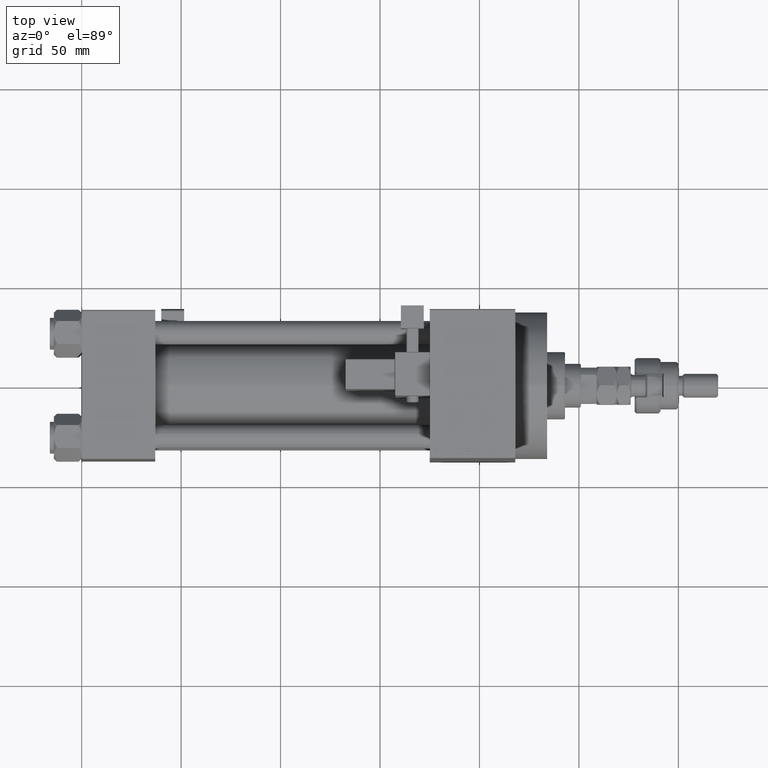
[diagram: clean part render]
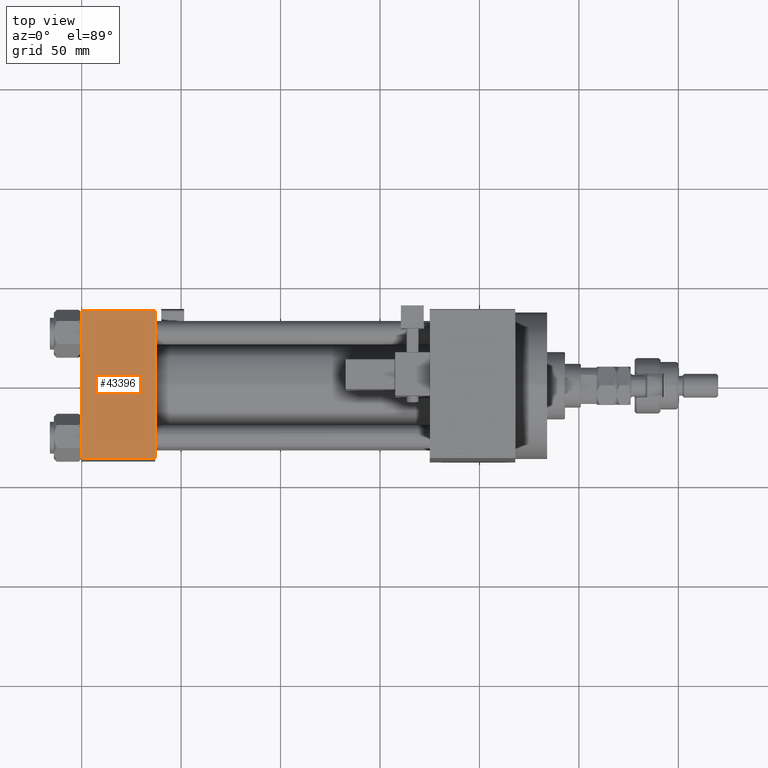
[diagram: same view with one face highlighted and labeled with its STEP entity id]
A machine part, top view. The second image highlights one B-rep face of the part: STEP entity #43396.
In plain terms, the highlighted planar face has unit normal (0, 0, -1).
Its self-contained STEP definition (entity closure, byte-faithful):
#2106 = VECTOR ( 'NONE', #29829, 1000.000000000000000 ) ;
#3666 = VERTEX_POINT ( 'NONE', #10170 ) ;
#6418 = EDGE_CURVE ( 'NONE', #32703, #25438, #26160, .T. ) ;
#8182 = LINE ( 'NONE', #49561, #52061 ) ;
#8771 = VERTEX_POINT ( 'NONE', #17692 ) ;
#9107 = EDGE_CURVE ( 'NONE', #8771, #3666, #29569, .T. ) ;
#10170 = CARTESIAN_POINT ( 'NONE',  ( 0.000000000000000000, 36.99999999999999289, 37.50000000000000000 ) ) ;
#15981 = DIRECTION ( 'NONE',  ( 0.000000000000000000, 1.000000000000000000, 9.251858538542971581E-17 ) ) ;
#17692 = CARTESIAN_POINT ( 'NONE',  ( 37.00000000000000000, 36.99999999999999289, 37.50000000000000000 ) ) ;
#21372 = DIRECTION ( 'NONE',  ( 0.000000000000000000, -1.000000000000000000, -9.251858538542971581E-17 ) ) ;
#23038 = ORIENTED_EDGE ( 'NONE', *, *, #6418, .T. ) ;
#24602 = EDGE_LOOP ( 'NONE', ( #44249, #23038, #48220, #44634 ) ) ;
#25134 = DIRECTION ( 'NONE',  ( 1.000000000000000000, 0.000000000000000000, 0.000000000000000000 ) ) ;
#25438 = VERTEX_POINT ( 'NONE', #29942 ) ;
#26160 = LINE ( 'NONE', #42357, #29293 ) ;
#26350 = CARTESIAN_POINT ( 'NONE',  ( 0.000000000000000000, -37.00000000000000711, 37.49999999999999289 ) ) ;
#28172 = CARTESIAN_POINT ( 'NONE',  ( 37.00000000000000000, 37.49999999999999289, 37.50000000000000000 ) ) ;
#29293 = VECTOR ( 'NONE', #25134, 1000.000000000000000 ) ;
#29569 = LINE ( 'NONE', #45758, #2106 ) ;
#29829 = DIRECTION ( 'NONE',  ( -1.000000000000000000, 0.000000000000000000, 0.000000000000000000 ) ) ;
#29942 = CARTESIAN_POINT ( 'NONE',  ( 37.00000000000000000, -37.00000000000000711, 37.49999999999999289 ) ) ;
#30377 = LINE ( 'NONE', #41795, #37552 ) ;
#32703 = VERTEX_POINT ( 'NONE', #26350 ) ;
#37552 = VECTOR ( 'NONE', #21372, 1000.000000000000000 ) ;
#41795 = CARTESIAN_POINT ( 'NONE',  ( 37.00000000000000000, 37.49999999999999289, 37.50000000000000000 ) ) ;
#42357 = CARTESIAN_POINT ( 'NONE',  ( 37.00000000000000000, -37.00000000000000711, 37.49999999999999289 ) ) ;
#43396 = ADVANCED_FACE ( 'NONE', ( #48357 ), #47577, .F. ) ;
#44110 = DIRECTION ( 'NONE',  ( 0.000000000000000000, 9.251858538542971581E-17, -1.000000000000000000 ) ) ;
#44249 = ORIENTED_EDGE ( 'NONE', *, *, #50130, .T. ) ;
#44634 = ORIENTED_EDGE ( 'NONE', *, *, #9107, .T. ) ;
#45332 = DIRECTION ( 'NONE',  ( 0.000000000000000000, -1.000000000000000000, -9.251858538542971581E-17 ) ) ;
#45758 = CARTESIAN_POINT ( 'NONE',  ( 0.000000000000000000, 36.99999999999999289, 37.50000000000000000 ) ) ;
#47577 = PLANE ( 'NONE',  #50072 ) ;
#47798 = EDGE_CURVE ( 'NONE', #8771, #25438, #30377, .T. ) ;
#48220 = ORIENTED_EDGE ( 'NONE', *, *, #47798, .F. ) ;
#48357 = FACE_OUTER_BOUND ( 'NONE', #24602, .T. ) ;
#49561 = CARTESIAN_POINT ( 'NONE',  ( 0.000000000000000000, 37.49999999999999289, 37.50000000000000000 ) ) ;
#50072 = AXIS2_PLACEMENT_3D ( 'NONE', #28172, #44110, #15981 ) ;
#50130 = EDGE_CURVE ( 'NONE', #3666, #32703, #8182, .T. ) ;
#52061 = VECTOR ( 'NONE', #45332, 1000.000000000000000 ) ;